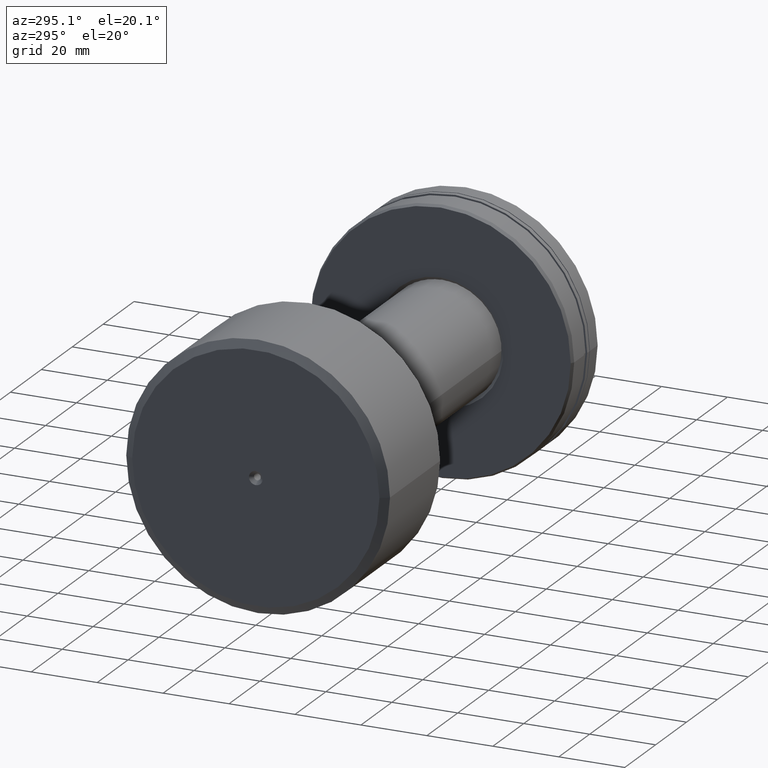
[diagram: clean part render]
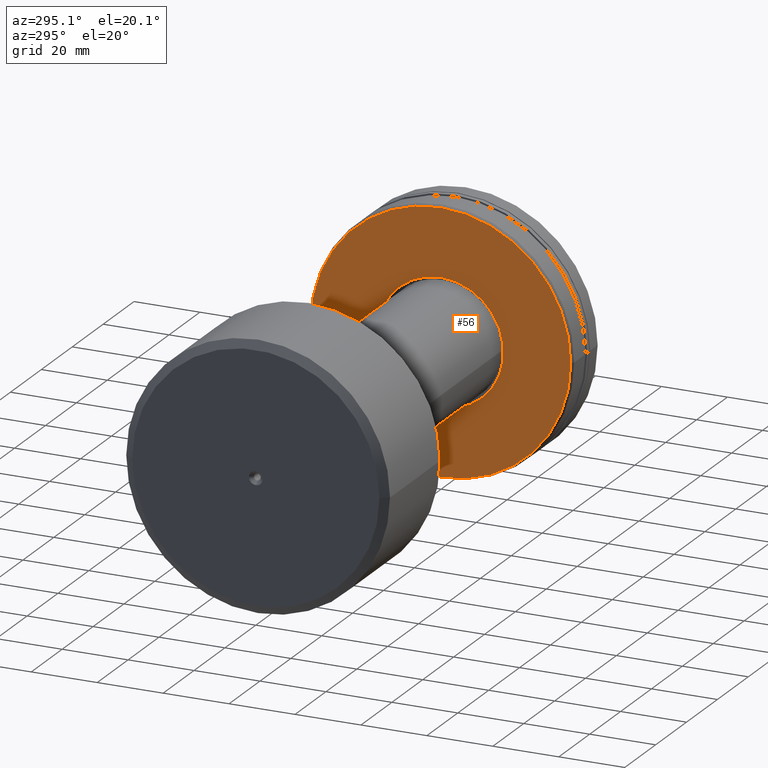
[diagram: same view with one face highlighted and labeled with its STEP entity id]
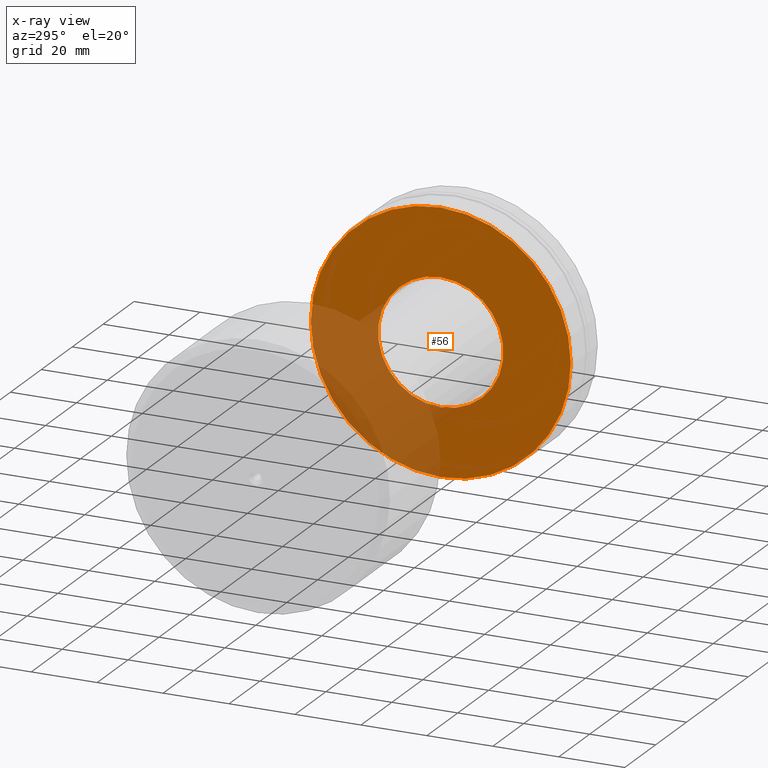
[diagram: x-ray of the same camera — body ghosted, the highlighted face saturated]
A machine part, auxiliary view. The second image highlights one B-rep face of the part: STEP entity #56.
The next image is the same camera in x-ray: the body ghosted, the highlighted face saturated — about 28% of this face is hidden behind the body in this view.
In plain terms, the highlighted planar face has unit normal (1, 0, 0).
Its self-contained STEP definition (entity closure, byte-faithful):
#26 = EDGE_LOOP ( 'NONE', ( #1374, #1130 ) ) ;
#56 = ADVANCED_FACE ( 'NONE', ( #985, #1168 ), #2010, .F. ) ;
#111 = CARTESIAN_POINT ( 'NONE',  ( -40.20000000000000995, -3.708233295962654957E-15, 0.000000000000000000 ) ) ;
#174 = CARTESIAN_POINT ( 'NONE',  ( -40.20000000000001705, 39.42264973081046975, 0.000000000000000000 ) ) ;
#208 = AXIS2_PLACEMENT_3D ( 'NONE', #2039, #1243, #1599 ) ;
#209 = AXIS2_PLACEMENT_3D ( 'NONE', #111, #2056, #769 ) ;
#232 = VERTEX_POINT ( 'NONE', #174 ) ;
#308 = CARTESIAN_POINT ( 'NONE',  ( -40.19999999999999574, -39.42264973081048396, 4.863234688631922596E-15 ) ) ;
#321 = VERTEX_POINT ( 'NONE', #308 ) ;
#327 = EDGE_CURVE ( 'NONE', #321, #232, #1358, .T. ) ;
#383 = CIRCLE ( 'NONE', #411, 19.00000000000002487 ) ;
#390 = DIRECTION ( 'NONE',  ( 1.000000000000000000, 3.738146982434194072E-16, -0.000000000000000000 ) ) ;
#411 = AXIS2_PLACEMENT_3D ( 'NONE', #1965, #390, #1839 ) ;
#516 = EDGE_CURVE ( 'NONE', #232, #321, #1597, .T. ) ;
#668 = ORIENTED_EDGE ( 'NONE', *, *, #516, .F. ) ;
#690 = DIRECTION ( 'NONE',  ( 1.000000000000000000, 3.738146982434194072E-16, -0.000000000000000000 ) ) ;
#721 = DIRECTION ( 'NONE',  ( -3.520257492222390077E-16, 1.000000000000000000, 0.000000000000000000 ) ) ;
#733 = CARTESIAN_POINT ( 'NONE',  ( -40.20000000000000995, -3.708233295962654957E-15, 0.000000000000000000 ) ) ;
#769 = DIRECTION ( 'NONE',  ( -3.520257492222390077E-16, 1.000000000000000000, 0.000000000000000000 ) ) ;
#985 = FACE_BOUND ( 'NONE', #26, .T. ) ;
#1130 = ORIENTED_EDGE ( 'NONE', *, *, #2226, .T. ) ;
#1168 = FACE_OUTER_BOUND ( 'NONE', #2133, .T. ) ;
#1243 = DIRECTION ( 'NONE',  ( 1.000000000000000000, 3.738146982434194072E-16, -0.000000000000000000 ) ) ;
#1358 = CIRCLE ( 'NONE', #1551, 39.42264973081047685 ) ;
#1374 = ORIENTED_EDGE ( 'NONE', *, *, #2219, .T. ) ;
#1478 = VERTEX_POINT ( 'NONE', #2301 ) ;
#1481 = DIRECTION ( 'NONE',  ( -3.738146982434194072E-16, 1.000000000000000000, 0.000000000000000000 ) ) ;
#1548 = CIRCLE ( 'NONE', #208, 19.00000000000002487 ) ;
#1551 = AXIS2_PLACEMENT_3D ( 'NONE', #733, #690, #721 ) ;
#1597 = CIRCLE ( 'NONE', #209, 39.42264973081047685 ) ;
#1599 = DIRECTION ( 'NONE',  ( -3.652049423109062896E-16, 1.000000000000000000, 0.000000000000000000 ) ) ;
#1642 = CARTESIAN_POINT ( 'NONE',  ( -40.20000000000000995, -3.708233295962655746E-15, 0.000000000000000000 ) ) ;
#1787 = CARTESIAN_POINT ( 'NONE',  ( -40.20000000000000995, 0.000000000000000000, 19.00000000000001776 ) ) ;
#1839 = DIRECTION ( 'NONE',  ( -3.652049423109062896E-16, 1.000000000000000000, 0.000000000000000000 ) ) ;
#1961 = ORIENTED_EDGE ( 'NONE', *, *, #327, .F. ) ;
#1965 = CARTESIAN_POINT ( 'NONE',  ( -40.20000000000000995, 0.000000000000000000, 0.000000000000000000 ) ) ;
#2010 = PLANE ( 'NONE',  #2201 ) ;
#2025 = DIRECTION ( 'NONE',  ( 1.000000000000000000, 3.738146982434194072E-16, -0.000000000000000000 ) ) ;
#2039 = CARTESIAN_POINT ( 'NONE',  ( -40.20000000000000995, 0.000000000000000000, 0.000000000000000000 ) ) ;
#2056 = DIRECTION ( 'NONE',  ( 1.000000000000000000, 3.738146982434194072E-16, -0.000000000000000000 ) ) ;
#2133 = EDGE_LOOP ( 'NONE', ( #668, #1961 ) ) ;
#2144 = VERTEX_POINT ( 'NONE', #1787 ) ;
#2201 = AXIS2_PLACEMENT_3D ( 'NONE', #1642, #2025, #1481 ) ;
#2219 = EDGE_CURVE ( 'NONE', #2144, #1478, #1548, .T. ) ;
#2226 = EDGE_CURVE ( 'NONE', #1478, #2144, #383, .T. ) ;
#2301 = CARTESIAN_POINT ( 'NONE',  ( -40.20000000000000995, 2.326828918379972943E-15, -19.00000000000001776 ) ) ;